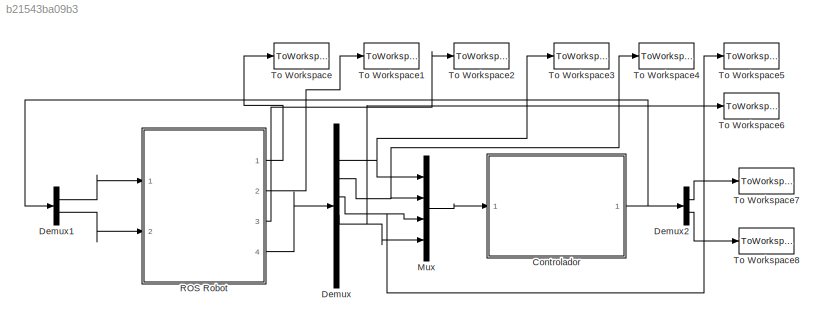
MODEL slx_b21543ba09b3
KIND model
CONFIG AbsTol = auto
CONFIG EnableMultiTasking = off
CONFIG FixedStep = 0.1
CONFIG MaxStep = auto
CONFIG MinStep = auto
CONFIG RelTol = 1e-3
CONFIG SampleTimeConstraint = Unconstrained
CONFIG Solver = FixedStepDiscrete
CONFIG SolverName = FixedStepDiscrete
CONFIG StartTime = 0.0
CONFIG StopTime = 200
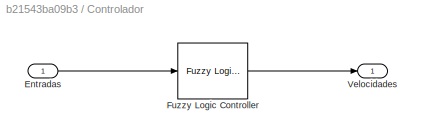
BLOCK [SubSystem] Controlador
  Ports = [1, 1]
  RequestExecContextInheritance = off
BLOCK [Inport] Controlador/Entradas
BLOCK [Reference] Controlador/Fuzzy Logic Controller  REF=fuzblock/Fuzzy Logic   (lib defined in mdl_858b3b3e7478)
Controller
  Ports = [1, 1]
  SourceBlock = fuzblock/Fuzzy Logic \nController
  SourceProductBaseCode = FL
  SourceType = Fuzzy Inference System
BLOCK [Outport] Controlador/Velocidades
  VectorParamsAs1DForOutWhenUnconnected = off
BLOCK [Demux] Demux
  Outputs = 8
  Ports = [1, 8]
BLOCK [Demux] Demux1
  Outputs = 2
  Ports = [1, 2]
BLOCK [Demux] Demux2
  Outputs = 2
  Ports = [1, 2]
BLOCK [Mux] Mux
  DisplayOption = bar
  Ports = [4, 1]
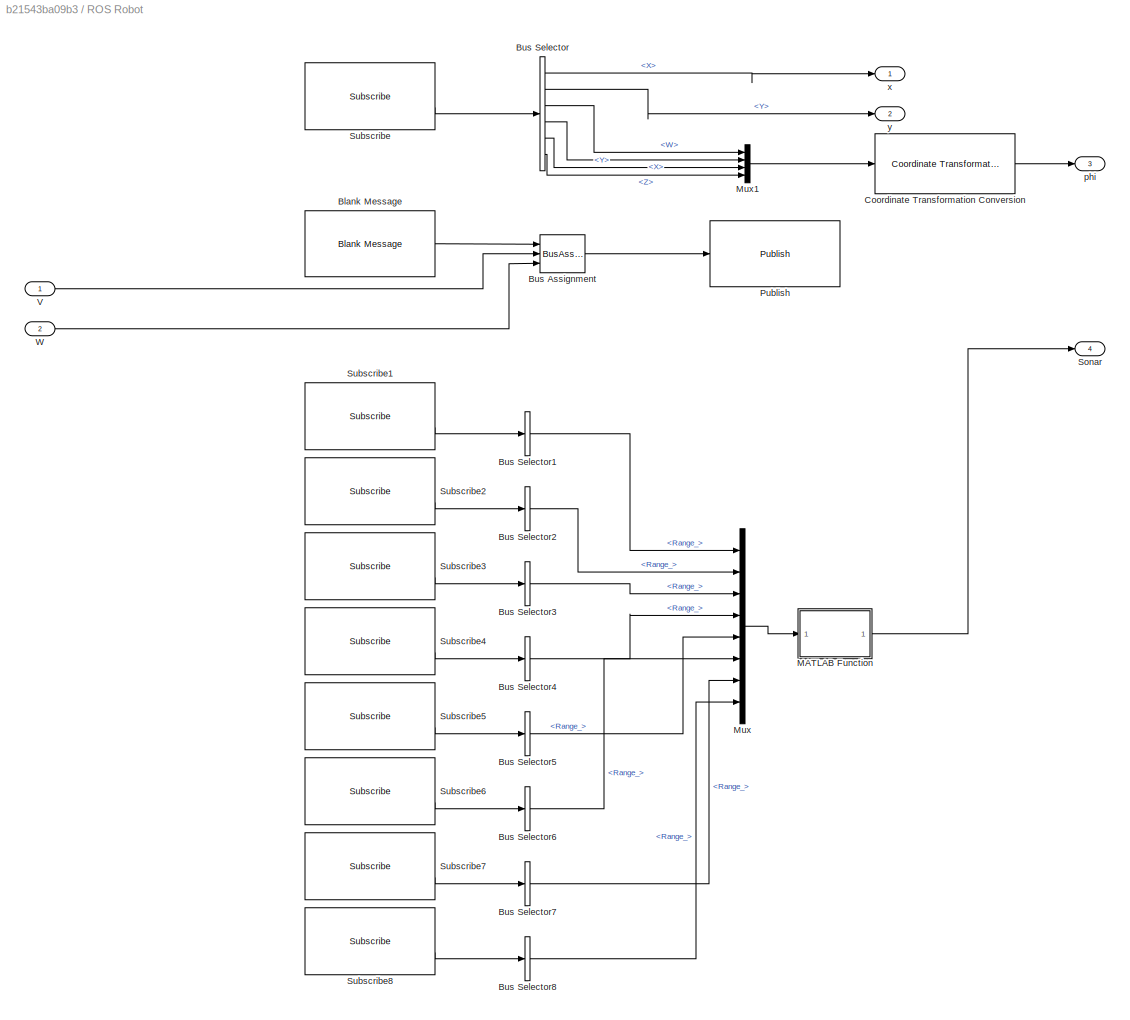
BLOCK [SubSystem] ROS Robot
  Ports = [2, 4]
  RequestExecContextInheritance = off
BLOCK [Reference] ROS Robot/Blank Message  REF=robotlib/Blank Message
  Ports = [0, 1]
  SourceBlock = robotlib/Blank Message
  SourceProductBaseCode = RR
  SourceType = ROS Blank Message
BLOCK [BusAssignment] ROS Robot/Bus Assignment
  AssignedSignals = Linear.X,Angular.Z
  Ports = [3, 1]
BLOCK [BusSelector] ROS Robot/Bus Selector
  OutputSignals = Pose.Pose.Position.X,Pose.Pose.Position.Y,Pose.Pose.Orientation.W,Pose.Pose.Orientation.X,Pose.Pose.Orientation.Y,Pose.Pose.Orientation.Z
  Ports = [1, 6]
BLOCK [BusSelector] ROS Robot/Bus Selector1
  OutputSignals = Range_
  Ports = [1, 1]
BLOCK [BusSelector] ROS Robot/Bus Selector2
  OutputSignals = Range_
  Ports = [1, 1]
BLOCK [BusSelector] ROS Robot/Bus Selector3
  OutputSignals = Range_
  Ports = [1, 1]
BLOCK [BusSelector] ROS Robot/Bus Selector4
  OutputSignals = Range_
  Ports = [1, 1]
BLOCK [BusSelector] ROS Robot/Bus Selector5
  OutputSignals = Range_
  Ports = [1, 1]
BLOCK [BusSelector] ROS Robot/Bus Selector6
  OutputSignals = Range_
  Ports = [1, 1]
BLOCK [BusSelector] ROS Robot/Bus Selector7
  OutputSignals = Range_
  Ports = [1, 1]
BLOCK [BusSelector] ROS Robot/Bus Selector8
  OutputSignals = Range_
  Ports = [1, 1]
BLOCK [Reference] ROS Robot/Coordinate Transformation Conversion  REF=robotcorelib/Coordinate Transformation Conversion
  Ports = [1, 1]
  SourceBlock = robotcorelib/Coordinate Transformation Conversion
  SourceProductBaseCode = NV,RO,RR
  SourceType = robotics.slcore.internal.block.CoordinateTransformationConversion
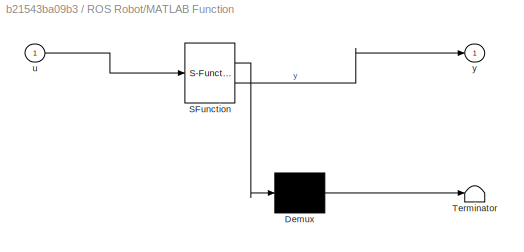
BLOCK [SubSystem] ROS Robot/MATLAB Function
  ErrorFcn = Stateflow.Translate.translate
  PermitHierarchicalResolution = ExplicitOnly
  Ports = [1, 1]
  RequestExecContextInheritance = off
  SFBlockType = MATLAB Function
  TreatAsAtomicUnit = on
BLOCK [Demux] ROS Robot/MATLAB Function/ Demux 
  Outputs = 1
  Ports = [1, 1]
BLOCK [S-Function] ROS Robot/MATLAB Function/ SFunction 
  EnableBusSupport = on
  FunctionName = sf_sfun
  PortCounts = [1 2]
  Ports = [1, 2]
  SFcnIsStateOwnerBlock = off
  SFunctionDeploymentMode = off
  Tag = Stateflow S-Function 2
BLOCK [Terminator] ROS Robot/MATLAB Function/ Terminator 
BLOCK [Inport] ROS Robot/MATLAB Function/u
BLOCK [Outport] ROS Robot/MATLAB Function/y
  VectorParamsAs1DForOutWhenUnconnected = off
BLOCK [Mux] ROS Robot/Mux
  DisplayOption = bar
  Inputs = 8
  Ports = [8, 1]
BLOCK [Mux] ROS Robot/Mux1
  DisplayOption = bar
  Ports = [4, 1]
BLOCK [Reference] ROS Robot/Publish  REF=robotlib/Publish
  Ports = [1]
  SourceBlock = robotlib/Publish
  SourceProductBaseCode = RR
  SourceType = ROS Publish
BLOCK [Outport] ROS Robot/Sonar
  Port = 4
  VectorParamsAs1DForOutWhenUnconnected = off
BLOCK [Reference] ROS Robot/Subscribe  REF=robotlib/Subscribe
  Ports = [0, 2]
  SourceBlock = robotlib/Subscribe
  SourceProductBaseCode = RR
  SourceType = ROS Subscribe
BLOCK [Reference] ROS Robot/Subscribe1  REF=robotlib/Subscribe
  Ports = [0, 2]
  SourceBlock = robotlib/Subscribe
  SourceProductBaseCode = RR
  SourceType = ROS Subscribe
BLOCK [Reference] ROS Robot/Subscribe2  REF=robotlib/Subscribe
  Ports = [0, 2]
  SourceBlock = robotlib/Subscribe
  SourceProductBaseCode = RR
  SourceType = ROS Subscribe
BLOCK [Reference] ROS Robot/Subscribe3  REF=robotlib/Subscribe
  Ports = [0, 2]
  SourceBlock = robotlib/Subscribe
  SourceProductBaseCode = RR
  SourceType = ROS Subscribe
BLOCK [Reference] ROS Robot/Subscribe4  REF=robotlib/Subscribe
  Ports = [0, 2]
  SourceBlock = robotlib/Subscribe
  SourceProductBaseCode = RR
  SourceType = ROS Subscribe
BLOCK [Reference] ROS Robot/Subscribe5  REF=robotlib/Subscribe
  Ports = [0, 2]
  SourceBlock = robotlib/Subscribe
  SourceProductBaseCode = RR
  SourceType = ROS Subscribe
BLOCK [Reference] ROS Robot/Subscribe6  REF=robotlib/Subscribe
  Ports = [0, 2]
  SourceBlock = robotlib/Subscribe
  SourceProductBaseCode = RR
  SourceType = ROS Subscribe
BLOCK [Reference] ROS Robot/Subscribe7  REF=robotlib/Subscribe
  Ports = [0, 2]
  SourceBlock = robotlib/Subscribe
  SourceProductBaseCode = RR
  SourceType = ROS Subscribe
BLOCK [Reference] ROS Robot/Subscribe8  REF=robotlib/Subscribe
  Ports = [0, 2]
  SourceBlock = robotlib/Subscribe
  SourceProductBaseCode = RR
  SourceType = ROS Subscribe
BLOCK [Inport] ROS Robot/V
BLOCK [Inport] ROS Robot/W
  Port = 2
BLOCK [Outport] ROS Robot/phi
  Port = 3
  VectorParamsAs1DForOutWhenUnconnected = off
BLOCK [Outport] ROS Robot/x
  VectorParamsAs1DForOutWhenUnconnected = off
BLOCK [Outport] ROS Robot/y
  Port = 2
  VectorParamsAs1DForOutWhenUnconnected = off
BLOCK [ToWorkspace] To Workspace
  MaxDataPoints = inf
  Ports = [1]
  SampleTime = -1
  SaveFormat = Structure With Time
  VariableName = x
BLOCK [ToWorkspace] To Workspace1
  MaxDataPoints = inf
  Ports = [1]
  SampleTime = -1
  SaveFormat = Structure With Time
  VariableName = y
BLOCK [ToWorkspace] To Workspace2
  MaxDataPoints = inf
  Ports = [1]
  SampleTime = -1
  SaveFormat = Structure With Time
  VariableName = phi
BLOCK [ToWorkspace] To Workspace3
  MaxDataPoints = inf
  Ports = [1]
  SampleTime = -1
  SaveFormat = Structure With Time
  VariableName = sonar1
BLOCK [ToWorkspace] To Workspace4
  MaxDataPoints = inf
  Ports = [1]
  SampleTime = -1
  SaveFormat = Structure With Time
  VariableName = sonar2
BLOCK [ToWorkspace] To Workspace5
  MaxDataPoints = inf
  Ports = [1]
  SampleTime = -1
  SaveFormat = Structure With Time
  VariableName = sonar3
BLOCK [ToWorkspace] To Workspace6
  MaxDataPoints = inf
  Ports = [1]
  SampleTime = -1
  SaveFormat = Structure With Time
  VariableName = sonar4
BLOCK [ToWorkspace] To Workspace7
  MaxDataPoints = inf
  Ports = [1]
  SampleTime = -1
  SaveFormat = Structure With Time
  VariableName = v
BLOCK [ToWorkspace] To Workspace8
  MaxDataPoints = inf
  Ports = [1]
  SampleTime = -1
  SaveFormat = Structure With Time
  VariableName = w
LINE Controlador/Entradas:1 -> Controlador/Fuzzy Logic Controller:1
LINE Controlador/Fuzzy Logic Controller:1 -> Controlador/Velocidades:1
NET Controlador:1 -> Demux1:1, Demux2:1
LINE Demux1:1 -> ROS Robot:1
LINE Demux1:2 -> ROS Robot:2
LINE Demux2:1 -> To Workspace7:1
LINE Demux2:2 -> To Workspace8:1
NET Demux:2 -> Mux:1, To Workspace3:1
NET Demux:3 -> Mux:2, To Workspace4:1
NET Demux:4 -> Mux:3, To Workspace5:1
NET Demux:5 -> Mux:4, To Workspace6:1
LINE Mux:1 -> Controlador:1
LINE ROS Robot/Blank Message:1 -> ROS Robot/Bus Assignment:1
LINE ROS Robot/Bus Assignment:1 -> ROS Robot/Publish:1
LINE ROS Robot/Bus Selector1:1 -> ROS Robot/Mux:1
LINE ROS Robot/Bus Selector2:1 -> ROS Robot/Mux:2
LINE ROS Robot/Bus Selector3:1 -> ROS Robot/Mux:3
LINE ROS Robot/Bus Selector4:1 -> ROS Robot/Mux:4
LINE ROS Robot/Bus Selector5:1 -> ROS Robot/Mux:5
LINE ROS Robot/Bus Selector6:1 -> ROS Robot/Mux:6
LINE ROS Robot/Bus Selector7:1 -> ROS Robot/Mux:7
LINE ROS Robot/Bus Selector8:1 -> ROS Robot/Mux:8
LINE ROS Robot/Bus Selector:1 -> ROS Robot/x:1
LINE ROS Robot/Bus Selector:2 -> ROS Robot/y:1
LINE ROS Robot/Bus Selector:3 -> ROS Robot/Mux1:1
LINE ROS Robot/Bus Selector:4 -> ROS Robot/Mux1:2
LINE ROS Robot/Bus Selector:5 -> ROS Robot/Mux1:3
LINE ROS Robot/Bus Selector:6 -> ROS Robot/Mux1:4
LINE ROS Robot/Coordinate Transformation Conversion:1 -> ROS Robot/phi:1
LINE ROS Robot/MATLAB Function:1 -> ROS Robot/Sonar:1
LINE ROS Robot/Mux1:1 -> ROS Robot/Coordinate Transformation Conversion:1
LINE ROS Robot/Mux:1 -> ROS Robot/MATLAB Function:1
LINE ROS Robot/Subscribe1:2 -> ROS Robot/Bus Selector1:1
LINE ROS Robot/Subscribe2:2 -> ROS Robot/Bus Selector2:1
LINE ROS Robot/Subscribe3:2 -> ROS Robot/Bus Selector3:1
LINE ROS Robot/Subscribe4:2 -> ROS Robot/Bus Selector4:1
LINE ROS Robot/Subscribe5:2 -> ROS Robot/Bus Selector5:1
LINE ROS Robot/Subscribe6:2 -> ROS Robot/Bus Selector6:1
LINE ROS Robot/Subscribe7:2 -> ROS Robot/Bus Selector7:1
LINE ROS Robot/Subscribe8:2 -> ROS Robot/Bus Selector8:1
LINE ROS Robot/Subscribe:2 -> ROS Robot/Bus Selector:1
LINE ROS Robot/V:1 -> ROS Robot/Bus Assignment:2
LINE ROS Robot/W:1 -> ROS Robot/Bus Assignment:3
LINE ROS Robot:1 -> To Workspace:1
LINE ROS Robot:2 -> To Workspace1:1
LINE ROS Robot:3 -> To Workspace2:1
LINE ROS Robot:4 -> Demux:1
note: NET lines group one-source signal fan-out (src -> all destinations, sorted); 1:1 wires keep LINE
CHART ROS Robot/MATLAB Function states=1 transitions=1
  STATE_LABEL 'eML_blk_kernel()'
  STATE_LABEL 'SCRIPT:\nfunction y = fcn(u)\nu(isinf(u))=5.0;\ny = u;\n'
CHART  states=0 transitions=0
